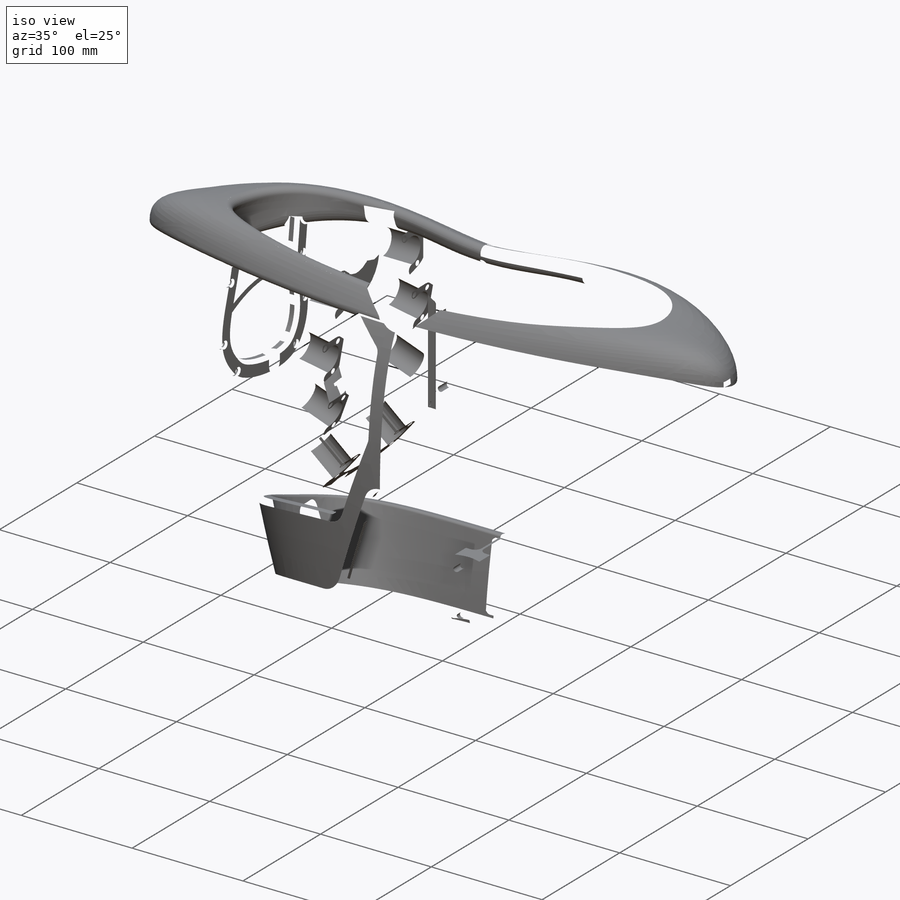
[diagram: iso view]
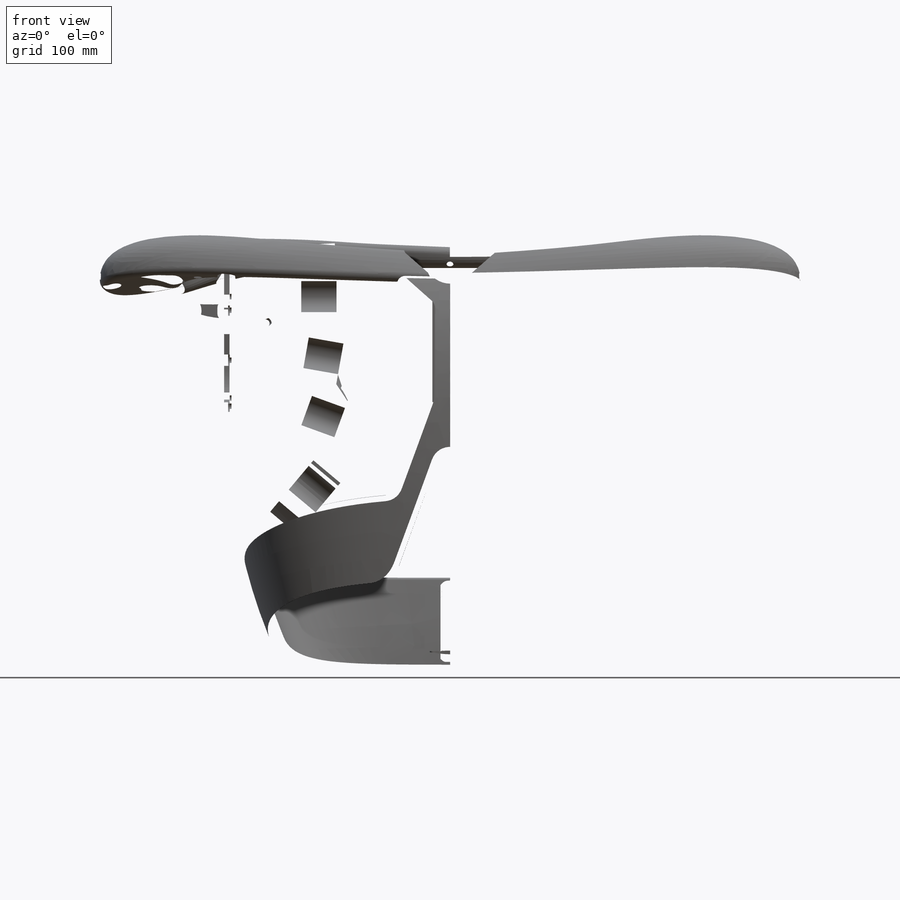
[diagram: front view]
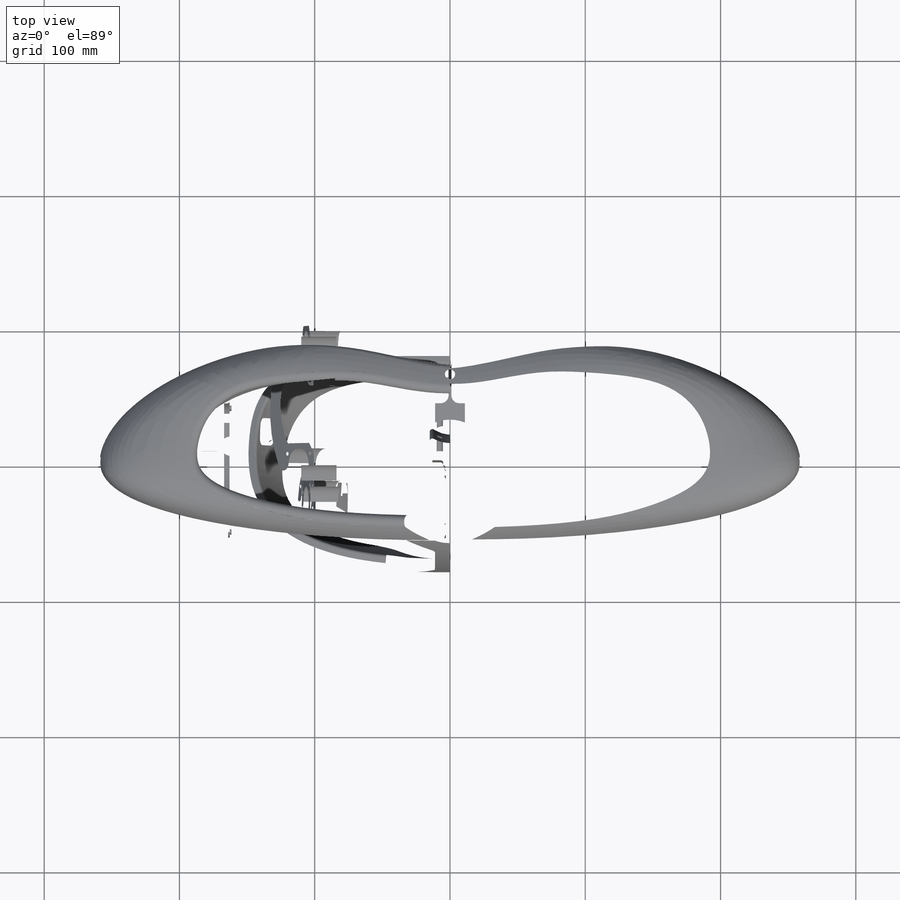
[diagram: top view]
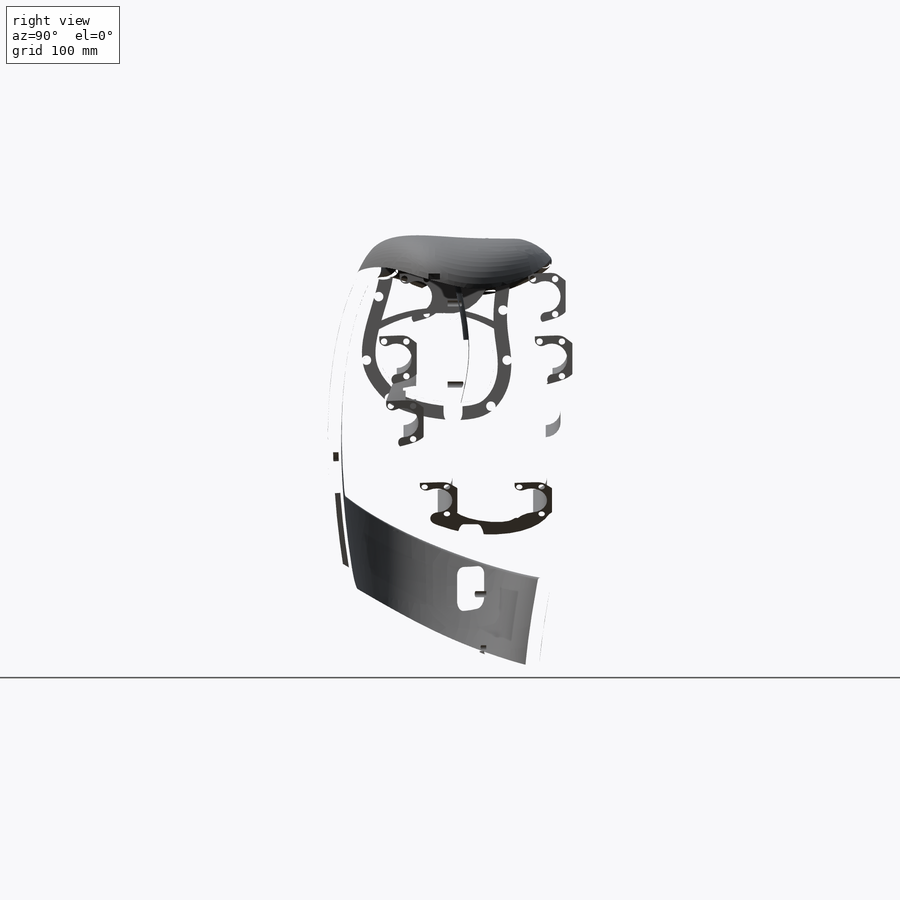
[diagram: right view]
SOLIDWORKS PART (.sldprt)
format: sldprt  version: not decoded by parser v0  size: 17,027,584 bytes
history: native  units: mm
features: sketch x176, plane x71, delete_body x46, surface_op x13, move_body x10, extrude x9, boolean_combine x9, cut_extrude x5, cut_revolve x5, fillet x2, material x1, mirror x1 + 11 further entries (+24 scaffold rows collapsed; 7 parser-record rows omitted)
feature tree (390):
  scaffold x24  (default folders/planes/origin — collapsed)
  material  "PA Typ 6"
  plane  "Vorne"
  plane  "Oben"
  plane  "Rechts"
  plane  "Vorne-p-vorlage-skelett-design-v02"
  plane  "Oben-p-vorlage-skelett-design-v02"
  plane  "Rechts-p-vorlage-skelett-design-v02"
  plane  "schulter vv-p-vorlage-skelett-design-v02"
  plane  "schulter vl-p-vorlage-skelett-design-v02"
  plane  "Umlenkebene Brustkorbmuskeln-p-vorlage-skelett-design-v02"
  plane  "Ebene1-p-vorlage-skelett-design-v02"
  plane  "Ebene2-p-vorlage-skelett-design-v02"
  plane  "Ebene3-p-vorlage-skelett-design-v02"
  plane  "Ebene7-p-vorlage-skelett-design-v02"
  plane  "Ebene5-p-vorlage-skelett-design-v02"
  plane  "Ebene8-p-vorlage-skelett-design-v02"
  plane  "Ebene9-p-vorlage-skelett-design-v02"
  plane  "Ebene10-p-vorlage-skelett-design-v02"
  plane  "Ebene11-p-vorlage-skelett-design-v02"
  plane  "Rückgrat vl-p-vorlage-skelett-design-v02"
  plane  "Ebene14-p-vorlage-skelett-design-v02"
  plane  "Ebene18-p-vorlage-skelett-design-v02"
  plane  "Ebene19-p-vorlage-skelett-design-v02"
  plane  "Ebene20-p-vorlage-skelett-design-v02"
  plane  "Ebene21-p-vorlage-skelett-design-v02"
  plane  "Schlüsselbeinebene-p-vorlage-skelett-design-v02"
  plane  "Motorgürtel-p-vorlage-skelett-design-v02"
  plane  "Motorgürtel 2-p-vorlage-skelett-design-v02"
  plane  "Ebene35-p-vorlage-skelett-design-v02"
  plane  "Ebene23-p-vorlage-skelett-design-v02"
  plane  "Ebene24-p-vorlage-skelett-design-v02"
  plane  "Ebene25-p-vorlage-skelett-design-v02"
  plane  "Ebene26-p-vorlage-skelett-design-v02"
  plane  "Ebene27-p-vorlage-skelett-design-v02"
  plane  "Ebene28-p-vorlage-skelett-design-v02"
  plane  "Ebene29-p-vorlage-skelett-design-v02"
  plane  "Ebene30-p-vorlage-skelett-design-v02"
  plane  "Ebene31-p-vorlage-skelett-design-v02"
  plane  "Ebene32-p-vorlage-skelett-design-v02"
  plane  "Ebene33-p-vorlage-skelett-design-v02"
  plane  "Ebene34-p-vorlage-skelett-design-v02"
  plane  "Ebene36-p-vorlage-skelett-design-v02"
  plane  "Ebene37-p-vorlage-skelett-design-v02"
  plane  "Ebene38-p-vorlage-skelett-design-v02"
  plane  "Ebene39-p-vorlage-skelett-design-v02"
  sketch  "Skizze1-p-vorlage-skelett-design-v02"  dims[D2=40.0mm D1=70.0mm D3=220.0mm D4=22.0mm D5=180.0mm]
  sketch  "Skizze3-p-vorlage-skelett-design-v02"  dims[D1=17.0mm]
  sketch  "Skizze4-p-vorlage-skelett-design-v02"
  sketch  "Skizze5-p-vorlage-skelett-design-v02"  dims[D1=33.0mm]
  sketch  "Skizze12-p-vorlage-skelett-design-v02"  dims[D1=~14.874488mm]
  sketch  "Skizze6-p-vorlage-skelett-design-v02"  dims[D1=33.0mm]
  sketch  "Skizze7-p-vorlage-skelett-design-v02"  dims[D1=~33.14184mm D2=~30.762271mm D3=~20.519177mm D4=~26.38915mm]
  sketch  "Skizze8-p-vorlage-skelett-design-v02"  dims[D1=~24.261964mm D2=23.3029mm D3=~26.064103mm D4=~27.323828mm]
  sketch  "Skizze9-p-vorlage-skelett-design-v02"  dims[c1.D1=14.0mm c1.D2=35.0mm c1.D3=6.5mm c2.D2=2.0mm c2.D4=17.5mm]
  sketch  "Skizze10-p-vorlage-skelett-design-v02"
  sketch  "Skizze11-p-vorlage-skelett-design-v02"  dims[c1.D1=25.0mm c1.D2=15.0mm c1.D3=~15.171293mm c2.D2=15.0mm]
  sketch  "Skizze93-p-vorlage-skelett-design-v02"  dims[c1.D1=25.0mm c1.D2=18.0mm c1.D3=30.0mm c1.D4=16.0mm c2.D1=~156.801409deg]
  sketch  "Skizze95-p-vorlage-skelett-design-v02"
  sketch  "Skizze15-p-vorlage-skelett-design-v02"
  sketch  "Skizze18-p-vorlage-skelett-design-v02"
  sketch  "Skizze19-p-vorlage-skelett-design-v02"
  sketch  "Skizze16-p-vorlage-skelett-design-v02"
  sketch  "Skizze20-p-vorlage-skelett-design-v02"
  sketch  "Skizze21-p-vorlage-skelett-design-v02"  dims[D1=~3.420397mm D2=~2.931769mm]
  sketch  "Skizze22-p-vorlage-skelett-design-v02"
  sketch  "Umlenkpunkte Schulter-p-vorlage-skelett-design-v02"
  sketch  "Umlenkpunkte Brustkorb-p-vorlage-skelett-design-v02"  dims[D1=43.0mm D2=20.0mm D3=48.0mm D4=9.0mm D5=27.0mm D6=52.0mm D7=52.0mm D8=27.0mm D9=61.0mm D10=40.0mm D11=40.0mm D12=61.0mm D13=0.0mm D14=54.0mm]
  sketch  "Skizze28-p-vorlage-skelett-design-v02"  dims[D1=210.0mm D2=340.0mm]
  sketch  "3D-Skizze1-p-vorlage-skelett-design-v02"
  sketch  "Skizze24-p-vorlage-skelett-design-v02"  dims[c1.D1=~36.615045mm c1.D2=20.0mm c2.D1=~47.251562mm c3.D1=5.0deg c3.D2=21.0mm c3.D4=8.5mm c4.D1=~36.615045mm c5.D1=95.0deg c5.D3=10.0mm]
  sketch  "Skizze25-p-vorlage-skelett-design-v02"  dims[c1.D1=~31.050811mm c1.D3=20.0mm c2.D1=~30.071096mm c3.D1=30.0deg c3.D2=~26.765088mm c4.D2=150.0deg c4.D4=10.0mm]
  sketch  "Skizze23-p-vorlage-skelett-design-v02"  dims[c1.D2=21.0mm c1.D3=20.1mm c1.D1=200.0mm c2.D1=38.0deg c2.D2=~9.715104mm]
  sketch  "Skizze26-p-vorlage-skelett-design-v02"  dims[c1.D1=~24.686097mm c1.D3=20.0mm c2.D1=~24.686097mm c3.D1=30.0deg c3.D2=~24.686097mm c4.D2=150.0deg c4.D4=10.0mm]
  sketch  "Skizze31-p-vorlage-skelett-design-v02"  dims[c1.D1=~30.69741mm c2.D1=50.0deg c2.D2=40.0mm c3.D1=~462.166003mm c4.D1=45.0deg]
  sketch  "Skizze36-p-vorlage-skelett-design-v02"  dims[D1=2.0mm]
  sketch  "Skizze35-p-vorlage-skelett-design-v02"  dims[D1=110.0mm D2=65.0mm D3=27.0mm D4=20.0mm]
  sketch  "Skizze37-p-vorlage-skelett-design-v02"
  sketch  "Skizze42-p-vorlage-skelett-design-v02"  dims[D1=2.0mm D2=15.0mm]
  sketch  "Skizze49-p-vorlage-skelett-design-v02"  dims[D1=12.0mm D2=12.0mm D3=12.0mm D4=12.0mm D5=8.0mm D6=7.0mm D7=7.0mm]
  sketch  "Skizze50-p-vorlage-skelett-design-v02"
  sketch  "Skizze52-p-vorlage-skelett-design-v02"
  sketch  "Skizze54-p-vorlage-skelett-design-v02"
  sketch  "Skizze55-p-vorlage-skelett-design-v02"
  sketch  "3D-Skizze11-p-vorlage-skelett-design-v02"
  sketch  "Skizze56-p-vorlage-skelett-design-v02"
  sketch  "Skizze57-p-vorlage-skelett-design-v02"  dims[D1=15.0mm D2=10.0mm]
  sketch  "3D-Skizze13-p-vorlage-skelett-design-v02"
  sketch  "3D-Skizze15-p-vorlage-skelett-design-v02"
  sketch  "Skizze58-p-vorlage-skelett-design-v02"  dims[c1.D11=~69.573763mm c1.D1=54.0mm c2.D1=20.0deg c2.D2=54.0mm c3.D2=15.0deg c3.D3=54.0mm c4.D3=25.0deg c4.D4=54.0mm c5.D4=25.0deg c5.D5=~36.261128mm c6.D5=20.0deg c6.D6=~23.181668mm c7.D6=35.0deg c7.D7=75.0mm c7.D8=30.0mm c7.D9=30.0mm c7.D10=50.0mm c7.D11=35.0mm]
  sketch  "Skizze59-p-vorlage-skelett-design-v02"
  sketch  "3D-Skizze17-p-vorlage-skelett-design-v02"
  sketch  "Skizze74-p-vorlage-skelett-design-v02"
  sketch  "Skizze61-p-vorlage-skelett-design-v02"  dims[D1=10.0mm]
  sketch  "Skizze62-p-vorlage-skelett-design-v02"
  sketch  "Skizze63-p-vorlage-skelett-design-v02"
  sketch  "Skizze64-p-vorlage-skelett-design-v02"
  sketch  "Skizze65-p-vorlage-skelett-design-v02"
  sketch  "3D-Skizze14-p-vorlage-skelett-design-v02"
  sketch  "Skizze66-p-vorlage-skelett-design-v02"
  sketch  "Skizze67-p-vorlage-skelett-design-v02"
  sketch  "3D-Skizze16-p-vorlage-skelett-design-v02"
  sketch  "Skizze68-p-vorlage-skelett-design-v02"
  sketch  "Skizze69-p-vorlage-skelett-design-v02"  dims[c1.D1=35.0mm c1.D2=45.0mm c1.D3=20.0mm c1.D4=60.0mm c1.D5=50.0mm c1.D6=45.0mm c1.D7=80.0mm c1.D8=190.0mm c1.D9=30.0mm c1.D10=340.0mm c1.D11=55.0mm c1.D12=55.0mm c1.D13=30.0mm c1.D14=35.0mm c1.D15=40.0mm c1.D16=40.0mm c1.D17=40.0mm c1.D18=40.0mm c2.D17=40.0mm c2.D19=35.0mm]
  sketch  "Skizze70-p-vorlage-skelett-design-v02"  dims[D1=35.0mm]
  sketch  "Skizze71-p-vorlage-skelett-design-v02"  dims[D1=45.0mm]
  sketch  "Skizze72-p-vorlage-skelett-design-v02"  dims[D1=50.0mm]
  sketch  "Skizze73-p-vorlage-skelett-design-v02"  dims[D1=40.0mm]
  sketch  "Skizze77-p-vorlage-skelett-design-v02"  dims[D1=210.0mm D2=80.0mm D3=50.0mm D4=180.0mm]
  sketch  "Skizze78-p-vorlage-skelett-design-v02"  dims[D1=30.0mm D2=80.0mm D3=65.0mm D4=90.0mm D5=180.0mm D6=20.0mm]
  sketch  "Skizze79-p-vorlage-skelett-design-v02"  dims[D1=~5.373099mm]
  sketch  "Skizze80-p-vorlage-skelett-design-v02"  dims[D1=115.0mm D2=30.0mm]
  sketch  "Skizze81-p-vorlage-skelett-design-v02"  dims[D1=~43.091562mm]
  sketch  "3D-Skizze19-p-vorlage-skelett-design-v02"
  sketch  "Motorausrichtung 1-p-vorlage-skelett-design-v02"  dims[c1.D1=~120.76352mm c2.D1=~47.517089mm c3.D1=~121.224287mm c4.D1=~83.855625mm c5.D1=~122.00786mm c6.D1=~54.409544mm c7.D1=~126.352167mm c8.D1=~47.320889mm c9.D1=~120.410613mm c10.D1=~92.660864mm c11.D1=~121.751709mm c12.D1=~179.705141mm c13.D1=~127.289314mm c14.D1=~169.433509mm]
  sketch  "Motorausrichtung 2-p-vorlage-skelett-design-v02"  dims[c1.D1=~120.203993mm c2.D1=~69.289462mm c3.D1=~50.731856mm c4.D1=~121.823544mm c5.D1=~135.004586mm c6.D1=~166.871165mm c7.D1=~102.627633mm c8.D1=~188.468488mm c9.D1=~425.519004mm c10.D1=~204.581644mm c11.D1=~82.443445mm c12.D1=~126.552891mm c13.D1=~157.888641mm c14.D1=~126.660597mm c15.D1=~122.615737mm c16.D1=~135.557149mm c17.D1=~179.296152mm c18.D1=~121.875844mm c19.D1=~746.623464mm c20.D1=~157.093816mm c21.D1=~62.287159mm c22.D1=~128.285315mm c23.D1=~245.408834mm c24.D1=~137.811934mm c25.D1=~109.363622mm c26.D1=~87.986535mm c27.D1=~58.539166mm c28.D1=~62.71874mm c29.D1=~46.720959mm c30.D1=~128.76414mm c31.D1=~60.806998mm c32.D1=~50.877468mm c33.D1=~88.221103mm c34.D1=~94.802312mm c35.D1=~62.184297mm c36.D1=~187.146197mm c37.D1=~99.00965mm c38.D1=15.0mm c38.D2=40.0mm c38.D3=~54.964174mm c39.D3=30.0mm c39.D4=42.0mm c39.D5=40.0mm c39.D6=40.0mm c39.D7=35.0mm c39.D8=40.0mm c39.D9=~40.446307mm c39.D11=50.0mm c39.D10=40.0mm c40.D9=40.0mm c40.D11=40.0mm c40.D12=26.0mm c40.D13=38.0mm c40.D14=38.0mm c40.D15=~5.400059mm c41.D15=15.0mm c41.D16=~121.951747mm c41.D17=121.0mm c42.D16=~121.951747mm c42.D23=~121.951747mm c42.D17=~15.656439mm c43.D17=~17.436814mm c44.D17=12.0mm c44.D18=~3.827501mm c45.D18=12.0mm c46.D18=80.0deg c46.D19=~6.161606mm c47.D19=16.0mm c47.D20=~14.656857mm c48.D20=~14.681401mm c49.D20=90.0deg c49.D21=35.0mm c49.D22=20.0mm c49.D23=3.4839mm]
  sketch  "Skizze51-p-vorlage-skelett-design-v02"  dims[c1.D1=190.0mm c1.D2=1250.0mm c1.D3=850.0mm c1.D4=~259.830717mm c2.D4=102.5deg c2.D5=200.0mm c2.D6=180.0mm c2.D7=~180.072716mm c3.D7=170.0deg]
  sketch  "Skizze83-p-vorlage-skelett-design-v02"  dims[c1.D1=~133.462716mm c1.D2=~200.165558mm c2.D1=140.0mm c2.D2=280.0mm c2.D3=90.0mm c2.D4=150.0mm]
  sketch  "Skizze84-p-vorlage-skelett-design-v02"  dims[D1=10.0mm]
  sketch  "Skizze85-p-vorlage-skelett-design-v02"  dims[c1.D1=~12.671975mm c2.D1=30.0deg c2.D2=40.0mm c2.D3=5.0mm c2.D4=10.0mm c2.D5=45.0mm c2.D6=25.0mm c2.D7=10.0mm c3.D7=110.0deg c3.D8=5.0mm]
  sketch  "Skizze86-p-vorlage-skelett-design-v02"  dims[D1=30.0mm]
  sketch  "Skizze87-p-vorlage-skelett-design-v02"  dims[D1=35.0mm D2=38.0mm D3=32.0mm D4=35.0mm D5=35.0mm D6=35.0mm D7=35.0mm D8=35.0mm D9=35.0mm D10=30.0mm D11=30.0mm D12=25.0mm D13=25.0mm D14=20.0mm D15=20.0mm D16=3.0mm D17=3.0mm]
  sketch  "Skizze90-p-vorlage-skelett-design-v02"  dims[c1.D1=6.0mm c1.D2=~4.017958mm c2.D1=8.0mm]
  sketch  "Skizze91-p-vorlage-skelett-design-v02"  dims[c1.D1=150.0mm c1.D2=~30.083337mm c2.D1=10.0mm c2.D2=~33.918316mm c3.D2=35.0deg c3.D3=40.0deg c3.D4=58.0deg c3.D5=~52.059034mm c4.D5=100.0deg c4.D6=~54.745326mm c5.D6=100.0deg c5.D7=~44.704321mm c6.D7=70.0deg c6.D8=~23.969944mm c7.D8=80.0deg c7.D9=40.0deg]
  sketch  "Skizze92-p-vorlage-skelett-design-v02"  dims[D1=30.0mm D2=25.0mm]
  sketch  "Skizze94-p-vorlage-skelett-design-v02"  dims[c1.D1=600.0mm c1.D2=300.0mm c1.D3=~46.046596mm c2.D3=~5.418349deg c3.D3=~46.046596mm c4.D3=~174.581651deg c5.D3=150.0mm c5.D4=120.0mm]
  "p-vorlage-skelett-design-v02"
  parser-record x7  (decoder bookkeeping rows leaked as tree rows — omitted from the tree; the rows remain in map.json)
  move_body  "Körper-Verschieben/Kopieren2"
  "Deckungsgleich1"
  "Deckungsgleich2"
  "Deckungsgleich4"
  delete_body  "Körper-Löschen1"
  delete_body  "Körper-Löschen2"
  sketch  "Skizze1"  dims[D1=360.0mm D2=20.0mm]
  plane  "Ebene42"
  plane  "Ebene43"
  plane  "Ebene44"
  plane  "Ebene45"
  "Motorflächenreferenz"
  surface_op  "Oberfläche-Offset11"
  surface_op  "Oberfläche-Offset12"
  surface_op  "Oberfläche-Offset13"
  surface_op  "Oberfläche-Offset14"
  surface_op  "Oberfläche-Offset15"
  surface_op  "Oberfläche-Offset16"
  surface_op  "Oberfläche-Offset17"
  surface_op  "Oberfläche-Offset18"
  plane  "Ebene46"  Offset=80mm
  "Halterflächen aufdicken"
  move_body  "Ausformung6"
  move_body  "Ausformung7"
  move_body  "Ausformung8"
  move_body  "Ausformung9"
  move_body  "Ausformung10"
  move_body  "Ausformung11"
  move_body  "Ausformung12"
  move_body  "Ausformung14"
  sketch  "Skizze51"  dims[D1=1.0mm D2=1.0mm]
  extrude  "Aufsatz-Linear austragen5"  [1 undecoded]
  move_body  "Ausformung15"
  sketch  "Skizze53"  dims[c1.D1=12.0mm c2.D1=24.0mm]
  "Halter rechts hinten"
  sketch  "Skizze4"  dims[D1=15.0mm]
  sketch  "Skizze5"  dims[D1=15.0mm]
  sketch  "Skizze6"  dims[D1=15.0mm]
  sketch  "Skizze7"  dims[D1=15.0mm]
  plane  "Ebene48"  Offset=88mm
  "Halter rechts vorne"
  sketch  "Skizze9"  dims[D1=15.0mm]
  sketch  "Skizze10"  dims[D1=15.0mm]
  sketch  "Skizze11"  dims[D1=15.0mm]
  sketch  "Skizze12"  dims[D1=15.0mm]
  sketch  "Skizze13"  dims[D1=15.0mm]
  plane  "Ebene49"  Offset=17mm
  "Achse1"
  plane  "Ebene47"
  plane  "Ebene50"  Offset=9mm
  sketch  "Skizze25"  dims[c1.D1=4.7mm c2.D1=18.0mm]
  sketch  "Skizze26"  dims[c1.D1=4.7mm c2.D1=18.0mm]
  sketch  "Skizze27"  dims[c1.D1=4.7mm c2.D1=18.0mm]
  sketch  "Skizze28"  dims[c1.D1=4.7mm c2.D1=18.0mm]
  sketch  "Skizze29"  dims[c1.D1=4.7mm c2.D1=18.0mm]
  sketch  "Skizze30"  dims[c1.D1=4.7mm c2.D1=18.0mm]
  sketch  "Skizze31"  dims[c1.D1=4.7mm c2.D1=18.0mm]
  sketch  "Skizze32"  dims[c1.D1=4.7mm c2.D1=18.0mm]
  sketch  "Skizze58"  dims[c1.D1=4.7mm c2.D1=18.0mm]
  sketch  "Skizze46"  dims[c1.D1=~64.682228mm c1.D2=26.0mm c1.D3=26.0mm c2.D3=60.0deg]
  sketch  "Skizze54"  dims[c1.D1=100.0mm c1.D2=~95.938849mm c2.D2=80.0deg c2.D3=70.0deg c2.D4=50.0deg c2.D5=42.0mm c2.D6=94.0mm c2.D7=10.0mm c2.D8=1.0mm c2.D9=10.0mm c2.D10=20.0mm c2.D11=15.0mm c3.D8=0.5mm c3.D12=5.0mm c3.D13=8.0mm c3.D7=70.0mm c3.D11=72.0mm c4.D13=65.0mm c4.D1=49.0mm c4.D2=66.0mm c4.D5=5.0mm c4.D6=1.0mm c4.D7=5.0mm]
  sketch  "Skizze54<3>"  dims[D1=40.0mm D2=55.0mm D5=5.0mm D6=1.0mm D7=5.0mm]
  sketch  "Skizze54<4>"  dims[D1=30.0mm D2=60.0mm D5=5.0mm D6=1.0mm D7=5.0mm]
  sketch  "Skizze59"  dims[c1.D9=2.01mm c1.D1=4.0mm c1.D2=47.0mm c1.D3=32.0mm c1.D4=4.0mm c1.D5=4.0mm c1.D6=47.0mm c1.D7=32.0mm c1.D8=4.0mm c1.D10=32.0mm c1.D11=47.0mm c1.D12=4.0mm c1.D13=29.0mm c2.D12=4.0mm]
  cut_extrude  "Schnitt-Linear austragen26"  [1 undecoded]
  sketch  "Skizze60"  dims[D8=2.01mm D1=32.0mm D2=47.0mm D3=4.0mm D4=4.0mm D5=4.0mm D6=4.0mm D7=24.0mm]
  "Schnitt-Linear austragen27"
  sketch  "Skizze61"  dims[c1.D8=2.01mm c1.D1=32.0mm c1.D2=47.0mm c1.D3=4.0mm c1.D4=4.0mm c1.D5=4.0mm c1.D6=4.0mm c1.D7=24.0mm c2.D3=4.0mm c2.D4=4.0mm c2.D5=4.0mm c2.D6=4.0mm c2.D7=20.0mm]
  "Schnitt-Linear austragen28"
  fillet  "Verrundung1"  Radius=15mm
  plane  "Ebene51"  Offset=170mm
  sketch  "Skizze62"  dims[D1=4.0mm D2=43.0mm D3=52.0mm D4=35.0mm D5=49.0mm D6=52.0mm D7=40.0mm D8=10.0mm D9=27.0mm D10=61.0mm D11=20.0mm D12=27.0mm D13=55.0mm]
  sketch  "Skizze63"  dims[D1=5.0mm D2=65.0mm D3=260.0mm D4=50.0mm D5=80.0mm D6=65.0mm]
  sketch  "Skizze64"  dims[D1=65.0mm D2=260.0mm D3=110.0mm D4=160.0mm]
  plane  "Ebene52"
  sketch  "Skizze66"
  plane  "Ebene53"
  sketch  "Skizze67"
  sketch  "Skizze68"  dims[c1.D5=10.0mm c1.D1=40.0mm c1.D2=70.0mm c1.D3=150.0mm c1.D4=95.0mm c1.D6=~254.744524mm c2.D6=20.0deg c2.D7=~254.744524mm c3.D7=75.0deg c3.D8=45.0mm c3.D9=100.0mm]
  sketch  "Skizze69"  dims[D1=75.0mm D2=90.0mm D3=70.0mm D4=0.0mm]
  cut_extrude  "Trennlinie2"  [1 undecoded]
  sketch  "Skizze70"  dims[D1=70.0mm D2=70.0mm]
  cut_extrude  "Trennlinie3"  [1 undecoded]
  sketch  "Skizze71"  dims[c1.D1=~229.026882mm c2.D1=50.0deg c2.D2=~229.026882mm c3.D2=20.0deg c3.D3=55.0mm c3.D4=15.0mm c3.D5=65.0mm c3.D6=75.0mm]
  cut_extrude  "Trennlinie4"  [1 undecoded]
  sketch  "Skizze72"  dims[D1=23.0mm D2=125.0mm]
  cut_extrude  "Trennlinie5"  [1 undecoded]
  sketch  "Skizze74"  dims[c1.D1=42.0mm c1.D2=60.0mm c1.D4=30.0mm c1.D3=1.0mm c2.D1=5.0mm]
  sketch  "Skizze80"  dims[c1.D2=20.0mm c1.D3=10.0mm c1.D4=60.0mm c1.D1=2.0mm c2.D1=5.0mm]
  sketch  "Skizze81"  dims[c1.D2=15.0mm c1.D3=35.0mm c2.D2=30.0mm c2.D1=11.0mm]
  sketch  "Skizze82"  dims[D1=180.0mm D2=40.0mm D3=78.0mm D4=20.0mm D5=50.0mm]
  sketch  "Skizze83"  dims[D1=55.0mm D2=35.0mm D3=2.0mm D4=25.0mm D5=5.0mm D6=20.0mm]
  sketch  "Skizze84"  dims[D1=5.0mm D2=45.0mm D3=35.0mm D4=20.0mm D5=20.0mm D6=5.0mm]
  sketch  "3D-Skizze4"
  sketch  "3D-Skizze6"
  sketch  "3D-Skizze7"
  extrude  "Oberfläche-Ausformung3"  [1 undecoded]
  delete_body  "Verrundung2"
  delete_body  "Verrundung3"
  delete_body  "Verrundung5"
  fillet  "Oberflächenausfüllung2"  [1 undecoded]
  surface_op  "Oberfläche-Zusammenfügen2"
  boolean_combine  "Kombinieren4"
  plane  "Ebene54"  Offset=35mm
  sketch  "Skizze85"  dims[D1=20.0mm]
  delete_body  "Verrundung6"
  sketch  "Skizze87"  dims[c1.D2=22.0mm c1.D1=210.0mm c2.D2=~290.779482mm c2.D3=105.0mm c2.D4=20.0mm c2.D5=5.0mm c2.D6=12.0mm c2.D7=16.0mm c2.D1=10.0mm]
  sketch  "Skizze45"  dims[c1.D1=2.5mm c1.D2=23.0mm c1.D3=~56.778917mm c2.D3=60.0deg]
  cut_revolve  "Schnitt-Rotation1"  Angle=360deg
  boolean_combine  "Schnitt-Rotation2"
  delete_body  "Verrundung7"
  sketch  "Skizze88"  dims[D1=10.0mm]
  delete_body  "Verrundung8"
  sketch  "Skizze89"  dims[c1.D1=30.0mm c1.D2=30.0mm c2.D1=10.0mm]
  extrude  "Oberfläche-Ausformung4"  [1 undecoded]
  extrude  "Oberfläche-Ausformung5"  [1 undecoded]
  extrude  "Oberfläche-Ausformung6"  [1 undecoded]
  extrude  "Oberfläche-Ausformung7"  [1 undecoded]
  extrude  "Oberfläche-Ausformung8"  [1 undecoded]
  extrude  "Oberfläche-Ausformung9"  [1 undecoded]
  surface_op  "Oberfläche-Zusammenfügen3"
  surface_op  "Oberfläche-Zusammenfügen4"
  cut_revolve  "Oberflächenschnitt2"  [1 undecoded]
  delete_body  "Verrundung9"
  delete_body  "Verrundung10"
  delete_body  "Verrundung11"
  plane  "Ebene55"  Offset=0.05mm
  sketch  "Skizze91"
  sketch  "Skizze92"  dims[D1=0.0mm]
  sketch  "Skizze93"  dims[D1=0.0mm]
  sketch  "Skizze94"  dims[c1.D1=10.0mm c1.D2=30.0mm c1.D3=10.0mm c2.D3=140.0deg c2.D4=2.0mm]
  sketch  "Skizze95"  dims[D1=192.0mm D2=257.0mm D3=72.0mm D4=82.0mm]
  surface_op  "Oberfläche-Linear austragen3"
  cut_revolve  "Oberflächenschnitt5"  [1 undecoded]
  surface_op  "Oberfläche-Linear austragen1"
  cut_revolve  "Oberflächenschnitt4"  [1 undecoded]
  sketch  "Skizze97"  dims[c1.D1=12.0mm c1.D2=12.0mm c1.D3=12.0mm c1.D4=12.0mm c1.D5=12.0mm c1.D6=12.0mm c2.D1=33.0mm c2.D2=~214.84474mm c3.D2=15.0deg c3.D3=12.0mm c3.D4=46.0mm c3.D5=40.0mm c3.D6=12.0mm c3.D7=~214.84474mm c4.D7=8.0deg c4.D8=40.0mm c4.D9=6.0mm c4.D10=10.0mm c4.D1=10.0mm]
  sketch  "Skizze100"  dims[D1=6.5mm D2=12.0mm]
  sketch  "Skizze101"  dims[D1=6.5mm D2=12.0mm]
  delete_body  "Verrundung15"
  delete_body  "Verrundung16"
  delete_body  "Verrundung17"
  sketch  "Skizze102"  dims[c1.D2=~4.726867mm c1.D1=6.5mm c2.D2=22.2mm]
  sketch  "Skizze103"  dims[c1.D2=~4.728449mm c1.D3=1.0mm c1.D1=6.5mm c2.D2=22.2mm]
  sketch  "Skizze104"  dims[c1.D2=~4.728449mm c1.D3=1.0mm c1.D1=6.5mm c2.D2=22.2mm]
  sketch  "Skizze105"  dims[c1.D2=~4.727715mm c1.D3=1.0mm c1.D1=6.5mm c2.D2=22.2mm]
  delete_body  "Körper-Löschen3"
  delete_body  "Verrundung18"
  delete_body  "Verrundung19"
  delete_body  "Verrundung20"
  delete_body  "Verrundung21"
  delete_body  "Verrundung22"
  delete_body  "Verrundung24"
  delete_body  "Verrundung25"
  sketch  "Skizze106"  dims[c1.D2=~4.728449mm c1.D1=6.5mm c2.D2=22.2mm c2.D3=2.5mm]
  sketch  "Skizze99"  dims[D1=12.0mm D2=6.5mm]
  delete_body  "Verrundung26"
  sketch  "Skizze107"  dims[D1=10.0mm D2=15.0mm D3=2.0mm D4=12.0mm]
  delete_body  "Verrundung27"
  delete_body  "Verrundung28"
  delete_body  "Verrundung29"
  sketch  "Skizze108"  dims[D1=5.0mm D2=15.0mm D3=5.0mm D4=15.0mm D5=12.0mm D6=12.0mm D7=15.0mm D8=3.0mm D9=45.0mm D10=45.0mm]
  delete_body  "Verrundung30"
  delete_body  "Verrundung31"
  sketch  "Skizze109"  dims[D1=5.0mm D2=2.0mm]
  plane  "Ebene56"  Offset=2mm
  sketch  "Skizze110"  dims[c1.D1=200.0mm c1.D2=43.0mm c1.D3=~222.589956mm c2.D3=5.0deg c2.D4=3.0mm c2.D5=50.0mm c2.D6=10.0mm c3.D4=3.0mm c3.D7=8.0mm]
  boolean_combine  "Schnitt-Rotation3"
  plane  "Ebene57"  Offset=7.5mm
  sketch  "Skizze111"  dims[c1.D1=15.0mm c1.D2=60.0mm c1.D3=4.5mm c1.D4=4.5mm c1.D5=1.0mm c1.D6=20.0mm c1.D7=40.0mm c1.D8=200.0mm c1.D9=5.3928mm c1.D10=5.0mm c2.D9=4.5mm c2.D10=4.5mm c2.D11=20.0mm c2.D12=45.0mm]
  boolean_combine  "Schnitt-Rotation4"
  boolean_combine  "Schnitt-Rotation5"
  sketch  "Skizze111<3>"  dims[D1=360.0deg]
  plane  "Ebene58"  Offset=8mm
  sketch  "Skizze112"  dims[c1.D1=7.2mm c2.D1=3.4mm]
  boolean_combine  "Schnitt-Rotation6"
  sketch  "Skizze111<4>"  dims[D1=360.0deg]
  boolean_combine  "Schnitt-Rotation7"
  sketch  "Skizze111<5>"  dims[D1=360.0deg]
  plane  "Ebene59"  Offset=10mm
  sketch  "Skizze113"  dims[c1.D1=7.2mm c2.D1=3.4mm]
  plane  "Ebene60"  Offset=5mm
  sketch  "Skizze115"  dims[c1.D1=8.4mm c1.D2=8.4mm c1.D3=8.4mm c1.D4=8.4mm c1.D5=8.4mm c1.D6=8.4mm c1.D7=~220.44062mm c2.D7=35.0deg c2.D8=~220.44062mm c3.D8=15.0deg c3.D9=~15.987234mm c4.D9=45.0deg c4.D10=~13.071277mm c5.D10=45.0deg c5.D11=15.0mm c5.D12=15.0mm c5.D13=13.0mm c5.D14=13.0mm c5.D15=15.0mm c5.D16=14.0mm c5.D1=4.4mm]
  delete_body  "Verrundung32"
  delete_body  "Verrundung33"
  delete_body  "Verrundung34"
  delete_body  "Verrundung35"
  sketch  "Skizze116"  dims[c1.D8=7.0mm c1.D9=8.0mm c1.D10=8.0mm c1.D11=9.0mm c1.D12=9.0mm c1.D13=9.0mm c1.D14=8.5mm c1.D1=0.0mm c1.D2=0.0mm c1.D3=0.0mm c1.D4=0.0mm c1.D5=0.0mm c1.D6=0.0mm c1.D7=0.7mm c2.D1=2.0mm]
  delete_body  "Verrundung36"
  delete_body  "Verrundung37"
  delete_body  "Verrundung40"
  delete_body  "Verrundung41"
  plane  "Ebene61"
  sketch  "Skizze117"  dims[c1.D1=17.0mm c1.D2=20.0mm c1.D3=27.0mm c1.D4=25.0mm c1.D5=3.0mm c1.D6=28.0mm c2.D1=6.0mm]
  sketch  "Skizze119"  dims[c1.D1=8.4mm c1.D2=10.0mm c2.D1=4.2mm]
  plane  "Ebene62"  Offset=2mm
  sketch  "Skizze121"  dims[c1.D3=7.0mm c1.D1=0.0mm c1.D2=0.7mm c2.D1=2.0mm]
  sketch  "Skizze122"  dims[D1=4.0mm]
  delete_body  "Verrundung42"
  delete_body  "Verrundung43"
  delete_body  "Verrundung44"
  plane  "Ebene63"
  plane  "Ebene64"
  sketch  "Skizze123"  dims[c1.D1=8.4mm c1.D2=18.0mm c2.D1=4.4mm]
  sketch  "Skizze124"  dims[c1.D3=7.0mm c1.D4=12.0mm c1.D5=0.7mm c1.D1=0.0mm c1.D2=0.7mm c2.D1=2.0mm]
  sketch  "Skizze126"  dims[c1.D1=~6.282345mm c2.D1=270.0deg c3.D1=5.0mm c3.D2=41.0mm c4.D2=60.0deg c4.D3=4.0mm c4.D4=2.0mm c4.D5=20.0mm]
  boolean_combine  "Schnitt-Rotation8"
  delete_body  "Verrundung45"
  sketch  "Skizze128"  dims[D1=5.0mm]
  plane  "Ebene65"  Offset=30mm
  sketch  "Skizze129"  dims[D1=80.0mm D2=120.0mm]
  extrude  "Oberfläche-Ausformung10"  [1 undecoded]
  cut_revolve  "Oberflächenschnitt6"  [1 undecoded]
  delete_body  "Verrundung46"
  plane  "Ebene66"
  plane  "Ebene67"  Offset=37mm
  sketch  "Skizze132"  dims[c1.D1=8.4mm c1.D2=10.0mm c2.D1=4.4mm]
  plane  "Ebene68"  Offset=2.2mm
  sketch  "Skizze133"  dims[c1.D3=7.0mm c1.D4=8.0mm c1.D1=0.0mm c1.D2=0.7mm c2.D1=0.0mm c2.D2=0.7mm c3.D1=2.0mm]
  sketch  "Skizze134"  dims[D1=4.0mm]
  sketch  "Skizze135"  dims[c1.D1=4.0mm c2.D1=10.0mm c2.D3=19.0deg]
  delete_body  "Verrundung47"
  sketch  "Skizze136"
  delete_body  "Verrundung48"
  sketch  "Skizze137"  dims[c1.D1=2.0mm c1.D2=5.0mm c1.D3=3.0mm c2.D1=12.0mm c2.D2=2.0mm]
  sketch  "Skizze138"  dims[D1=4.0mm D2=4.0mm D3=3.0mm]
  sketch  "Skizze139"  dims[c1.D5=30.0mm c1.D6=20.0mm c1.D7=30.0mm c1.D8=15.0mm c1.D9=8.0mm c1.D10=8.0mm c1.D11=~63.182649mm c2.D11=48.0deg c2.D12=~26.174963mm c3.D12=55.0deg c3.D13=50.0mm c3.D14=55.0mm c3.D1=10.0mm c3.D2=10.0mm c3.D3=13.0mm c3.D4=3.0mm c4.D1=12.0mm]
  delete_body  "Verrundung49"
  delete_body  "Verrundung50"
  delete_body  "Verrundung51"
  mirror  "Spiegeln4"
  sketch  "Skizze142"  dims[c1.D1=~64.530246mm c2.D1=40.0deg c2.D2=90.0mm c2.D3=50.0mm c2.D4=5.0mm c2.D5=7.5mm c2.D6=75.0mm c2.D7=25.0mm]
  boolean_combine  "Schnitt-Rotation9"
decode coverage: 138 of 276 modeling features carry decoded parameters; 11 rows unclassified (native names shown)
note: ~ marks probable driven/reference dimensions
note: 19 parameter values undecoded
summary: no parameter record found for 19 features
note: suppression state not decoded; provenance and decode notes live in map.json
